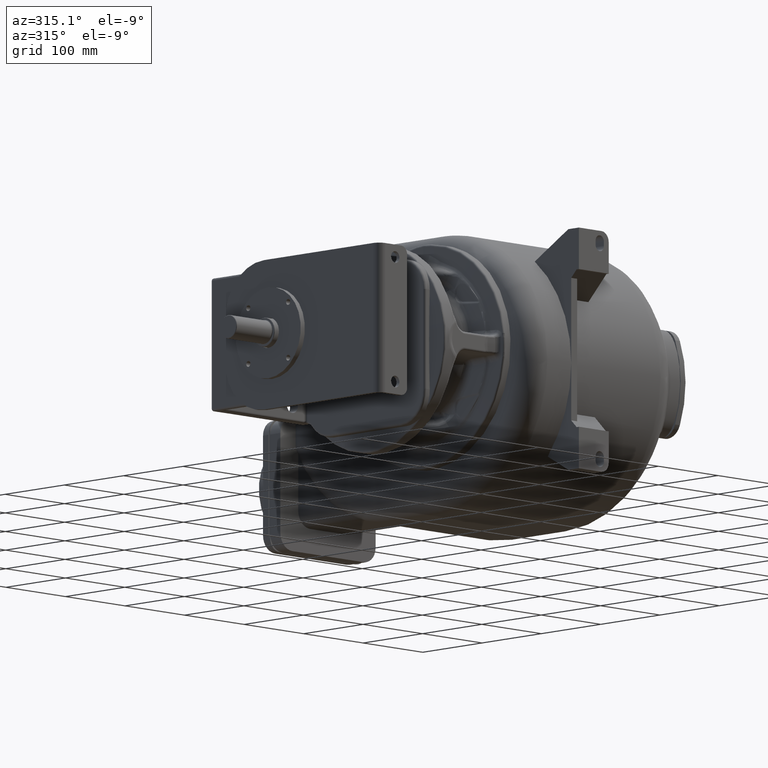
[diagram: clean part render]
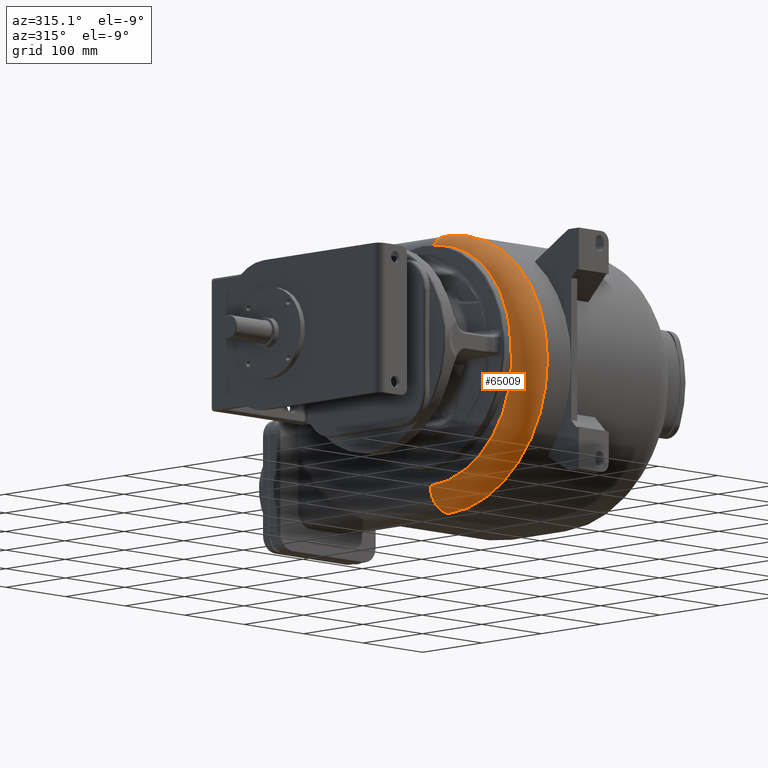
[diagram: same view with one face highlighted and labeled with its STEP entity id]
A machine part, auxiliary view. The second image highlights one B-rep face of the part: STEP entity #65009.
In plain terms, the highlighted toroidal blend (fillet) surface has major radius 137 mm and minor (blend) radius 30 mm.
Its self-contained STEP definition (entity closure, byte-faithful):
#6014=CARTESIAN_POINT('',(-1.05E2,1.8E2,-1.7E1));
#6015=DIRECTION('',(-1.E0,0.E0,0.E0));
#6016=DIRECTION('',(0.E0,0.E0,-1.E0));
#6017=AXIS2_PLACEMENT_3D('',#6014,#6015,#6016);
#21002=CARTESIAN_POINT('',(-7.5E1,1.8E2,1.2E2));
#21003=DIRECTION('',(0.E0,1.E0,0.E0));
#21004=DIRECTION('',(-8.980262537200E-1,0.E0,4.399418684662E-1));
#21005=AXIS2_PLACEMENT_3D('',#21002,#21003,#21004);
#21007=CARTESIAN_POINT('',(-1.019407876116E2,1.8E2,1.331982560540E2));
#21738=CARTESIAN_POINT('',(-1.05E2,4.520849433291E1,7.500000000003E0));
#21739=CARTESIAN_POINT('',(-1.05E2,4.525426051859E1,8.322519076773E0));
#21740=CARTESIAN_POINT('',(-1.049989581790E2,4.536085338041E1,
9.966759642791E0));
#21741=CARTESIAN_POINT('',(-1.049943018223E2,4.556586630402E1,
1.242980305196E1));
#21742=CARTESIAN_POINT('',(-1.049865854783E2,4.581596626539E1,
1.488899657928E1));
#21743=CARTESIAN_POINT('',(-1.049758449831E2,4.611109420202E1,
1.734352083894E1));
#21744=CARTESIAN_POINT('',(-1.049621241364E2,4.645105808027E1,
1.979184288769E1));
#21745=CARTESIAN_POINT('',(-1.049454607121E2,4.683586735332E1,
2.223400512404E1));
#21746=CARTESIAN_POINT('',(-1.049259043243E2,4.726529243855E1,
2.466849591080E1));
#21747=CARTESIAN_POINT('',(-1.049034967064E2,4.773932564178E1,
2.709524520026E1));
#21748=CARTESIAN_POINT('',(-1.048782895779E2,4.825777347587E1,
2.951310937372E1));
#21749=CARTESIAN_POINT('',(-1.048503417329E2,4.882034651774E1,
3.192078685016E1));
#21750=CARTESIAN_POINT('',(-1.048196997568E2,4.942703331665E1,
3.431819809578E1));
#21751=CARTESIAN_POINT('',(-1.047864292881E2,5.007747472161E1,
3.670389400148E1));
#21752=CARTESIAN_POINT('',(-1.047505814918E2,5.077162873897E1,
3.907770705992E1));
#21753=CARTESIAN_POINT('',(-1.047250080921E2,5.126335016037E1,
4.065162679007E1));
#21754=CARTESIAN_POINT('',(-1.047118131614E2,5.151641345709E1,
4.143631244539E1));
#21756=CARTESIAN_POINT('',(-1.047118131614E2,5.151641345710E1,
4.143631244539E1));
#21757=CARTESIAN_POINT('',(-1.046985411003E2,5.177095602355E1,
4.222558494421E1));
#21758=CARTESIAN_POINT('',(-1.046712235477E2,5.229436800535E1,
4.379807139160E1));
#21759=CARTESIAN_POINT('',(-1.046280433100E2,5.312206982839E1,
4.613779899096E1));
#21760=CARTESIAN_POINT('',(-1.045827848812E2,5.399186268089E1,
4.845751490495E1));
#21761=CARTESIAN_POINT('',(-1.045355685416E2,5.490343135968E1,
5.075674242241E1));
#21762=CARTESIAN_POINT('',(-1.044865238447E2,5.585634725978E1,
5.303471903626E1));
#21763=CARTESIAN_POINT('',(-1.044357852641E2,5.685013875874E1,
5.529065237624E1));
#21764=CARTESIAN_POINT('',(-1.043834754587E2,5.788461247473E1,
5.752438326085E1));
#21765=CARTESIAN_POINT('',(-1.043297334996E2,5.895929058027E1,
5.973511660499E1));
#21766=CARTESIAN_POINT('',(-1.042746938391E2,6.007381085371E1,
6.192234746708E1));
#21767=CARTESIAN_POINT('',(-1.042184920369E2,6.122780862237E1,
6.408556083729E1));
#21768=CARTESIAN_POINT('',(-1.041612740646E2,6.242070688481E1,
6.622389192716E1));
#21769=CARTESIAN_POINT('',(-1.041031600479E2,6.365246417978E1,
6.833745031581E1));
#21770=CARTESIAN_POINT('',(-1.040442721927E2,6.492301085766E1,
7.042619116547E1));
#21771=CARTESIAN_POINT('',(-1.039847553001E2,6.623178079102E1,
7.248923735400E1));
#21772=CARTESIAN_POINT('',(-1.039247632801E2,6.757795520804E1,
7.452541315717E1));
#21773=CARTESIAN_POINT('',(-1.038644337998E2,6.896100812454E1,
7.653409071271E1));
#21774=CARTESIAN_POINT('',(-1.038038691108E2,7.038119554599E1,
7.851573218857E1));
#21775=CARTESIAN_POINT('',(-1.037431984900E2,7.183812944662E1,
8.046980148151E1));
#21776=CARTESIAN_POINT('',(-1.036825633832E2,7.333104242585E1,
8.239531889550E1));
#21777=CARTESIAN_POINT('',(-1.036220761457E2,7.485980044040E1,
8.429215156396E1));
#21778=CARTESIAN_POINT('',(-1.035618636302E2,7.642383381395E1,
8.615961218429E1));
#21779=CARTESIAN_POINT('',(-1.035020253400E2,7.802319640278E1,
8.799776397327E1));
#21780=CARTESIAN_POINT('',(-1.034426627041E2,7.965785877311E1,
8.980648741486E1));
#21781=CARTESIAN_POINT('',(-1.033839082308E2,8.132683000387E1,
9.158461532266E1));
#21782=CARTESIAN_POINT('',(-1.033258809508E2,8.302932136824E1,
9.333129395252E1));
#21783=CARTESIAN_POINT('',(-1.032686931303E2,8.476456873397E1,
9.504576095074E1));
#21784=CARTESIAN_POINT('',(-1.032124175758E2,8.653288291380E1,
9.672831115330E1));
#21785=CARTESIAN_POINT('',(-1.031571324002E2,8.833438767802E1,
9.837894854121E1));
#21786=CARTESIAN_POINT('',(-1.031029472109E2,9.016804891238E1,
9.999661291107E1));
#21787=CARTESIAN_POINT('',(-1.030499622169E2,9.203289315418E1,
1.015803949972E2));
#21788=CARTESIAN_POINT('',(-1.029982557685E2,9.392849831115E1,
1.031299010926E2));
#21789=CARTESIAN_POINT('',(-1.029478899958E2,9.585490752034E1,
1.046450875901E2));
#21790=CARTESIAN_POINT('',(-1.028989386065E2,9.781159537932E1,
1.061254275765E2));
#21791=CARTESIAN_POINT('',(-1.028514757723E2,9.979777804499E1,
1.075702336256E2));
#21792=CARTESIAN_POINT('',(-1.028055579295E2,1.018131882598E2,
1.089792100865E2));
#21793=CARTESIAN_POINT('',(-1.027612457705E2,1.038571676312E2,
1.103517830435E2));
#21794=CARTESIAN_POINT('',(-1.027185895241E2,1.059292767109E2,
1.116875458032E2));
#21795=CARTESIAN_POINT('',(-1.026776318530E2,1.080292165265E2,
1.129861745068E2));
#21796=CARTESIAN_POINT('',(-1.026384136552E2,1.101565534015E2,
1.142472461024E2));
#21797=CARTESIAN_POINT('',(-1.026009837579E2,1.123100667528E2,
1.154699051876E2));
#21798=CARTESIAN_POINT('',(-1.025653713925E2,1.144892178696E2,
1.166537420375E2));
#21799=CARTESIAN_POINT('',(-1.025315949598E2,1.166938368704E2,
1.177985332465E2));
#21800=CARTESIAN_POINT('',(-1.024996706253E2,1.189235938447E2,
1.189039527164E2));
#21801=CARTESIAN_POINT('',(-1.024696086760E2,1.211782375118E2,
1.199696915114E2));
#21802=CARTESIAN_POINT('',(-1.024414268381E2,1.234564288550E2,
1.209949544325E2));
#21803=CARTESIAN_POINT('',(-1.024151179308E2,1.257582229945E2,
1.219796106219E2));
#21804=CARTESIAN_POINT('',(-1.023906766871E2,1.280830940849E2,
1.229232423633E2));
#21805=CARTESIAN_POINT('',(-1.023680921852E2,1.304303188926E2,
1.238253779296E2));
#21806=CARTESIAN_POINT('',(-1.023473402990E2,1.327998427556E2,
1.246857976478E2));
#21807=CARTESIAN_POINT('',(-1.023283963901E2,1.351908267733E2,
1.255039984518E2));
#21808=CARTESIAN_POINT('',(-1.023112156915E2,1.376040904618E2,
1.262800250826E2));
#21809=CARTESIAN_POINT('',(-1.022957595733E2,1.400387624247E2,
1.270133177141E2));
#21810=CARTESIAN_POINT('',(-1.022819787850E2,1.424939008536E2,
1.277033571488E2));
#21811=CARTESIAN_POINT('',(-1.022698077225E2,1.449698504178E2,
1.283499861606E2));
#21812=CARTESIAN_POINT('',(-1.022591747862E2,1.474665672037E2,
1.289528986849E2));
#21813=CARTESIAN_POINT('',(-1.022499977997E2,1.499844423748E2,
1.295118554384E2));
#21814=CARTESIAN_POINT('',(-1.022421895063E2,1.525227259333E2,
1.300263329630E2));
#21815=CARTESIAN_POINT('',(-1.022356517388E2,1.550804850890E2,
1.304958227424E2));
#21816=CARTESIAN_POINT('',(-1.022320662936E2,1.567989855928E2,
1.307786563352E2));
#21817=CARTESIAN_POINT('',(-1.022304477823E2,1.576613498798E2,
1.309124362949E2));
#21819=CARTESIAN_POINT('',(-1.022304477823E2,1.576613498798E2,
1.309124362949E2));
#21820=CARTESIAN_POINT('',(-1.022291813681E2,1.583361121272E2,
1.310171132483E2));
#21821=CARTESIAN_POINT('',(-1.022267627550E2,1.596871694647E2,
1.312169900954E2));
#21822=CARTESIAN_POINT('',(-1.022234784548E2,1.617180750230E2,
1.314883221249E2));
#21823=CARTESIAN_POINT('',(-1.022205391311E2,1.637527238747E2,
1.317310846110E2));
#21824=CARTESIAN_POINT('',(-1.022179459720E2,1.657904924063E2,
1.319452025419E2));
#21825=CARTESIAN_POINT('',(-1.022156998993E2,1.678307409952E2,
1.321306203892E2));
#21826=CARTESIAN_POINT('',(-1.022144340100E2,1.691925416598E2,
1.322351020173E2));
#21827=CARTESIAN_POINT('',(-1.022138590481E2,1.698737731673E2,
1.322825538860E2));
#21829=CARTESIAN_POINT('',(-1.022138590481E2,1.698737731673E2,
1.322825538860E2));
#21830=CARTESIAN_POINT('',(-1.022134898278E2,1.703112363912E2,
1.323130258282E2));
#21831=CARTESIAN_POINT('',(-1.022093282891E2,1.711888922278E2,
1.323776902664E2));
#21832=CARTESIAN_POINT('',(-1.021925970361E2,1.725143201007E2,
1.324860388111E2));
#21833=CARTESIAN_POINT('',(-1.021651417332E2,1.738483709817E2,
1.326057470490E2));
#21834=CARTESIAN_POINT('',(-1.021395331952E2,1.747431757200E2,
1.326930379437E2));
#21835=CARTESIAN_POINT('',(-1.021248544510E2,1.751920769536E2,
1.327385356692E2));
#21837=CARTESIAN_POINT('',(-1.021248544510E2,1.751920769536E2,
1.327385356692E2));
#21838=CARTESIAN_POINT('',(-1.021208089184E2,1.753157962880E2,
1.327510750611E2));
#21839=CARTESIAN_POINT('',(-1.021124199790E2,1.755649353577E2,
1.327765099359E2));
#21840=CARTESIAN_POINT('',(-1.020989210588E2,1.759437627863E2,
1.328157250965E2));
#21841=CARTESIAN_POINT('',(-1.020892973534E2,1.761997222538E2,
1.328425707207E2));
#21842=CARTESIAN_POINT('',(-1.020843255983E2,1.763285591188E2,
1.328561679035E2));
#21844=CARTESIAN_POINT('',(-1.020843255983E2,1.763285591188E2,
1.328561679035E2));
#21845=CARTESIAN_POINT('',(-1.020700605212E2,1.766982208041E2,
1.328951812587E2));
#21846=CARTESIAN_POINT('',(-1.020405839228E2,1.774630385192E2,
1.329728204630E2));
#21847=CARTESIAN_POINT('',(-1.019930159894E2,1.786868677829E2,
1.330872965777E2));
#21848=CARTESIAN_POINT('',(-1.019586981441E2,1.795537751854E2,
1.331616963865E2));
#21849=CARTESIAN_POINT('',(-1.019407876116E2,1.8E2,1.331982560540E2));
#21851=CARTESIAN_POINT('',(-7.5E1,1.8E2,-1.54E2));
#21852=DIRECTION('',(0.E0,-1.E0,0.E0));
#21853=DIRECTION('',(-1.E0,0.E0,0.E0));
#21854=AXIS2_PLACEMENT_3D('',#21851,#21852,#21853);
#21927=CARTESIAN_POINT('',(-7.5E1,1.8E2,-1.7E1));
#21928=DIRECTION('',(-1.E0,0.E0,0.E0));
#21929=DIRECTION('',(0.E0,0.E0,-1.E0));
#21930=AXIS2_PLACEMENT_3D('',#21927,#21928,#21929);
#29029=CARTESIAN_POINT('',(-1.05E2,1.8E2,-1.54E2));
#29030=VERTEX_POINT('',#29029);
#29032=CARTESIAN_POINT('',(-7.5E1,1.8E2,-1.84E2));
#29034=VERTEX_POINT('',#29032);
#29035=CARTESIAN_POINT('',(-7.5E1,1.8E2,1.5E2));
#29036=VERTEX_POINT('',#29035);
#30785=CARTESIAN_POINT('',(-1.05E2,4.520849433291E1,7.5E0));
#30787=VERTEX_POINT('',#30785);
#30792=VERTEX_POINT('',#21007);
#30795=VERTEX_POINT('',#21754);
#30796=VERTEX_POINT('',#21819);
#30797=VERTEX_POINT('',#21827);
#30798=VERTEX_POINT('',#21835);
#30799=VERTEX_POINT('',#21842);
#64986=CARTESIAN_POINT('',(-7.5E1,1.8E2,-1.7E1));
#64987=DIRECTION('',(-1.E0,0.E0,0.E0));
#64988=DIRECTION('',(0.E0,5.439143485413E-3,-9.999852077497E-1));
#64989=AXIS2_PLACEMENT_3D('',#64986,#64987,#64988);
#64990=TOROIDAL_SURFACE('',#64989,1.37E2,3.E1);
#64991=ORIENTED_EDGE('',*,*,#44150,.T.);
#64993=ORIENTED_EDGE('',*,*,#64992,.T.);
#64995=ORIENTED_EDGE('',*,*,#64994,.T.);
#64997=ORIENTED_EDGE('',*,*,#64996,.T.);
#64999=ORIENTED_EDGE('',*,*,#64998,.T.);
#65001=ORIENTED_EDGE('',*,*,#65000,.T.);
#65002=ORIENTED_EDGE('',*,*,#64484,.T.);
#65004=ORIENTED_EDGE('',*,*,#65003,.F.);
#65005=ORIENTED_EDGE('',*,*,#64978,.F.);
#65006=ORIENTED_EDGE('',*,*,#39165,.T.);
#65007=EDGE_LOOP('',(#64991,#64993,#64995,#64997,#64999,#65001,#65002,#65004,
#65005,#65006));
#65008=FACE_OUTER_BOUND('',#65007,.F.);
#65009=ADVANCED_FACE('',(#65008),#64990,.T.);
#6018=CIRCLE('',#6017,1.37E2);
#21006=CIRCLE('',#21005,3.E1);
#21755=B_SPLINE_CURVE_WITH_KNOTS('',3,(#21738,#21739,#21740,#21741,#21742,
#21743,#21744,#21745,#21746,#21747,#21748,#21749,#21750,#21751,#21752,#21753,
#21754),.UNSPECIFIED.,.F.,.F.,(4,1,1,1,1,1,1,1,1,1,1,1,1,1,4),(0.E0,
7.142857142857E-2,1.428571428571E-1,2.142857142857E-1,2.857142857143E-1,
3.571428571429E-1,4.285714285714E-1,5.E-1,5.714285714286E-1,6.428571428571E-1,
7.142857142857E-1,7.857142857143E-1,8.571428571429E-1,9.285714285714E-1,1.E0),
.UNSPECIFIED.);
#21818=B_SPLINE_CURVE_WITH_KNOTS('',3,(#21756,#21757,#21758,#21759,#21760,
#21761,#21762,#21763,#21764,#21765,#21766,#21767,#21768,#21769,#21770,#21771,
#21772,#21773,#21774,#21775,#21776,#21777,#21778,#21779,#21780,#21781,#21782,
#21783,#21784,#21785,#21786,#21787,#21788,#21789,#21790,#21791,#21792,#21793,
#21794,#21795,#21796,#21797,#21798,#21799,#21800,#21801,#21802,#21803,#21804,
#21805,#21806,#21807,#21808,#21809,#21810,#21811,#21812,#21813,#21814,#21815,
#21816,#21817),.UNSPECIFIED.,.F.,.F.,(4,1,1,1,1,1,1,1,1,1,1,1,1,1,1,1,1,1,1,1,1,
1,1,1,1,1,1,1,1,1,1,1,1,1,1,1,1,1,1,1,1,1,1,1,1,1,1,1,1,1,1,1,1,1,1,1,1,1,1,4),(
0.E0,1.694915254237E-2,3.389830508475E-2,5.084745762712E-2,6.779661016949E-2,
8.474576271186E-2,1.016949152542E-1,1.186440677966E-1,1.355932203390E-1,
1.525423728814E-1,1.694915254237E-1,1.864406779661E-1,2.033898305085E-1,
2.203389830508E-1,2.372881355932E-1,2.542372881356E-1,2.711864406780E-1,
2.881355932203E-1,3.050847457627E-1,3.220338983051E-1,3.389830508475E-1,
3.559322033898E-1,3.728813559322E-1,3.898305084746E-1,4.067796610169E-1,
4.237288135593E-1,4.406779661017E-1,4.576271186441E-1,4.745762711864E-1,
4.915254237288E-1,5.084745762712E-1,5.254237288136E-1,5.423728813559E-1,
5.593220338983E-1,5.762711864407E-1,5.932203389831E-1,6.101694915254E-1,
6.271186440678E-1,6.440677966102E-1,6.610169491525E-1,6.779661016949E-1,
6.949152542373E-1,7.118644067797E-1,7.288135593220E-1,7.457627118644E-1,
7.627118644068E-1,7.796610169492E-1,7.966101694915E-1,8.135593220339E-1,
8.305084745763E-1,8.474576271186E-1,8.644067796610E-1,8.813559322034E-1,
8.983050847458E-1,9.152542372881E-1,9.322033898305E-1,9.491525423729E-1,
9.661016949153E-1,9.830508474576E-1,1.E0),.UNSPECIFIED.);
#21828=B_SPLINE_CURVE_WITH_KNOTS('',3,(#21819,#21820,#21821,#21822,#21823,
#21824,#21825,#21826,#21827),.UNSPECIFIED.,.F.,.F.,(4,1,1,1,1,1,4),(0.E0,
1.666666666667E-1,3.333333333333E-1,5.E-1,6.666666666667E-1,8.333333333333E-1,
1.E0),.UNSPECIFIED.);
#21836=B_SPLINE_CURVE_WITH_KNOTS('',3,(#21829,#21830,#21831,#21832,#21833,
#21834,#21835),.UNSPECIFIED.,.F.,.F.,(4,1,1,1,4),(0.E0,2.5E-1,5.E-1,7.5E-1,
1.E0),.UNSPECIFIED.);
#21843=B_SPLINE_CURVE_WITH_KNOTS('',3,(#21837,#21838,#21839,#21840,#21841,
#21842),.UNSPECIFIED.,.F.,.F.,(4,1,1,4),(0.E0,3.333333333333E-1,
6.666666666667E-1,1.E0),.UNSPECIFIED.);
#21850=B_SPLINE_CURVE_WITH_KNOTS('',3,(#21844,#21845,#21846,#21847,#21848,
#21849),.UNSPECIFIED.,.F.,.F.,(4,1,1,4),(0.E0,3.333333333333E-1,
6.666666666667E-1,1.E0),.UNSPECIFIED.);
#21855=CIRCLE('',#21854,3.E1);
#21931=CIRCLE('',#21930,1.67E2);
#39165=EDGE_CURVE('',#29030,#30787,#6018,.T.);
#44150=EDGE_CURVE('',#30787,#30795,#21755,.T.);
#64484=EDGE_CURVE('',#30792,#29036,#21006,.T.);
#64978=EDGE_CURVE('',#29030,#29034,#21855,.T.);
#64992=EDGE_CURVE('',#30795,#30796,#21818,.T.);
#64994=EDGE_CURVE('',#30796,#30797,#21828,.T.);
#64996=EDGE_CURVE('',#30797,#30798,#21836,.T.);
#64998=EDGE_CURVE('',#30798,#30799,#21843,.T.);
#65000=EDGE_CURVE('',#30799,#30792,#21850,.T.);
#65003=EDGE_CURVE('',#29034,#29036,#21931,.T.);